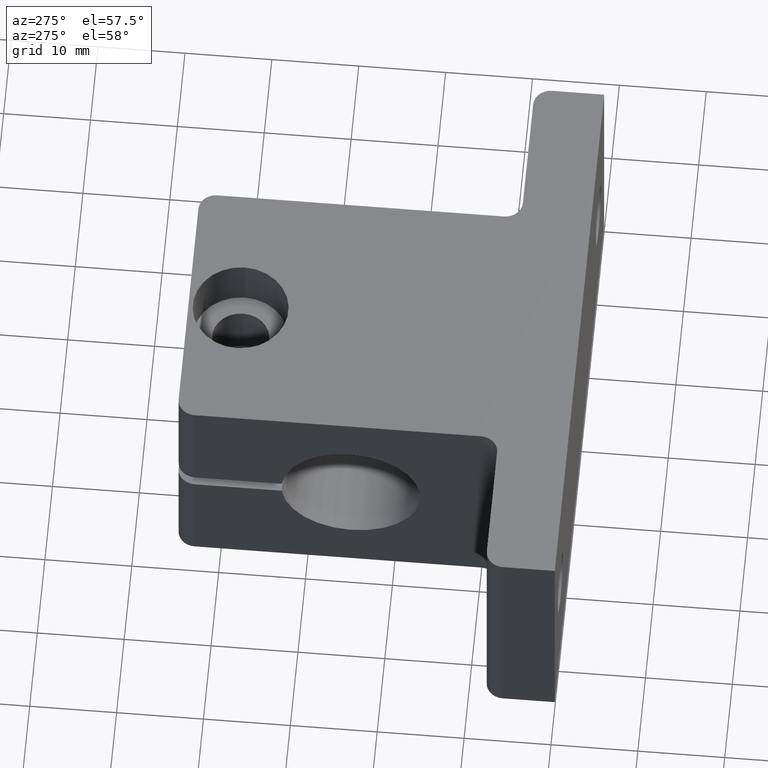
[diagram: clean part render]
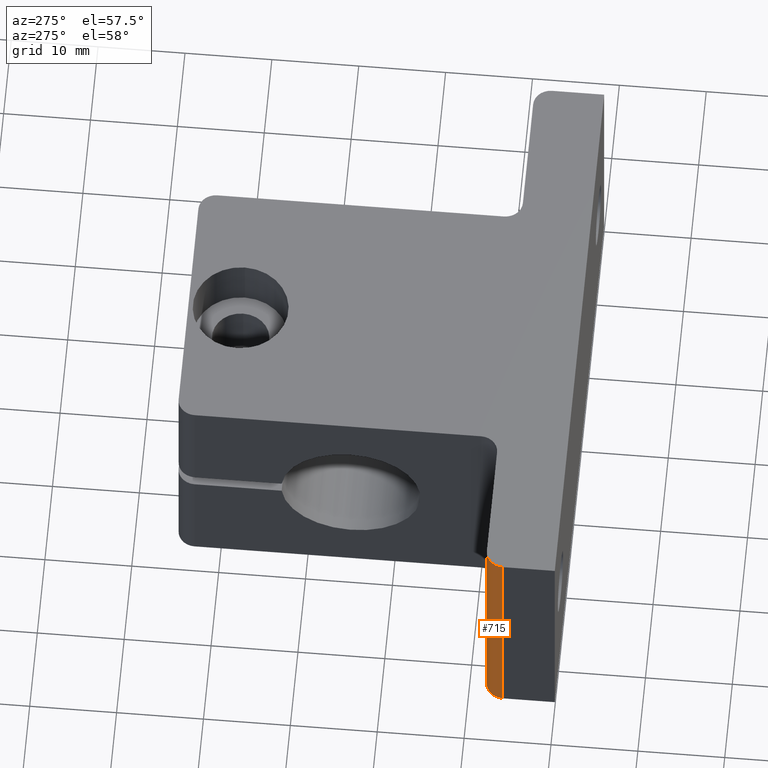
[diagram: same view with one face highlighted and labeled with its STEP entity id]
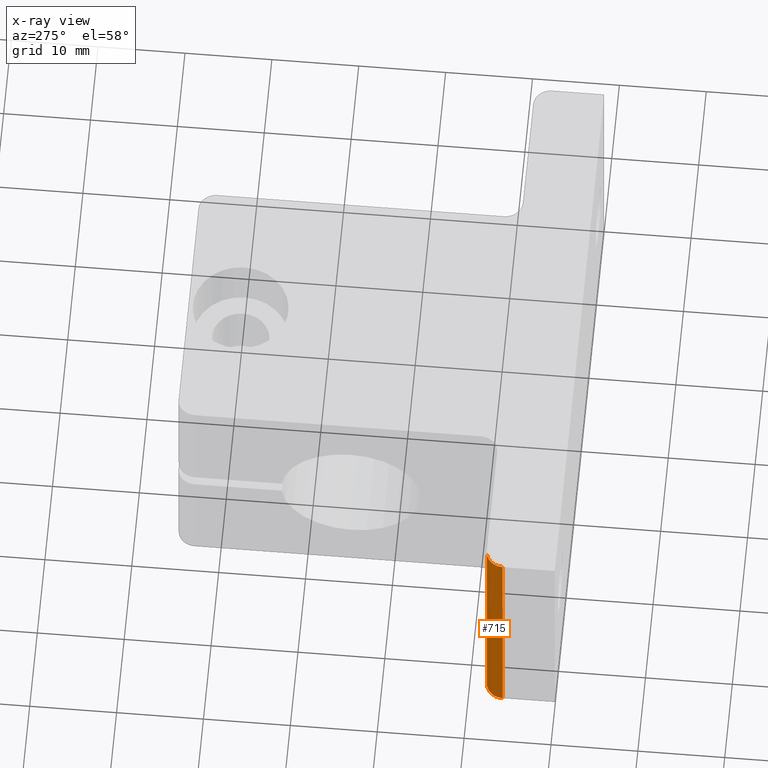
[diagram: x-ray of the same camera — body ghosted, the highlighted face saturated]
A machine part, auxiliary view. The second image highlights one B-rep face of the part: STEP entity #715.
The next image is the same camera in x-ray: the body ghosted, the highlighted face saturated — about 0% of this face is hidden behind the body in this view.
In plain terms, the highlighted cylindrical surface (edge-blend (fillet) strip) has radius 2 mm, axis along (0, 0, -1).
Its self-contained STEP definition (entity closure, byte-faithful):
#5 = CARTESIAN_POINT ( 'NONE',  ( -63.00000000000000000, 5.999999999999992900, 0.0000000000000000000 ) ) ;
#42 = DIRECTION ( 'NONE',  ( 1.000000000000000000, 0.0000000000000000000, 0.0000000000000000000 ) ) ;
#78 = DIRECTION ( 'NONE',  ( -0.0000000000000000000, 0.0000000000000000000, -1.000000000000000000 ) ) ;
#79 = VERTEX_POINT ( 'NONE', #188 ) ;
#101 = CARTESIAN_POINT ( 'NONE',  ( -63.00000000000000000, 7.999999999999992900, -28.00000000000000000 ) ) ;
#132 = CARTESIAN_POINT ( 'NONE',  ( -63.00000000000000000, 5.999999999999992900, -28.00000000000000000 ) ) ;
#141 = VERTEX_POINT ( 'NONE', #173 ) ;
#148 = DIRECTION ( 'NONE',  ( 0.0000000000000000000, -0.0000000000000000000, 1.000000000000000000 ) ) ;
#157 = DIRECTION ( 'NONE',  ( 1.000000000000000000, 0.0000000000000000000, 0.0000000000000000000 ) ) ;
#162 = VERTEX_POINT ( 'NONE', #424 ) ;
#173 = CARTESIAN_POINT ( 'NONE',  ( -63.00000000000000000, 7.999999999999992900, 0.0000000000000000000 ) ) ;
#188 = CARTESIAN_POINT ( 'NONE',  ( -65.00000000000000000, 5.999999999999991100, -28.00000000000000000 ) ) ;
#209 = DIRECTION ( 'NONE',  ( -0.0000000000000000000, -0.0000000000000000000, -1.000000000000000000 ) ) ;
#222 = CARTESIAN_POINT ( 'NONE',  ( -63.00000000000000000, 5.999999999999992900, -28.00000000000000000 ) ) ;
#237 = CARTESIAN_POINT ( 'NONE',  ( -65.00000000000000000, 5.999999999999992900, -28.00000000000000000 ) ) ;
#270 = DIRECTION ( 'NONE',  ( -1.000000000000000000, 0.0000000000000000000, 0.0000000000000000000 ) ) ;
#300 = DIRECTION ( 'NONE',  ( 0.0000000000000000000, 0.0000000000000000000, 1.000000000000000000 ) ) ;
#334 = CARTESIAN_POINT ( 'NONE',  ( -63.00000000000000000, 7.999999999999992900, 0.0000000000000000000 ) ) ;
#368 = DIRECTION ( 'NONE',  ( 0.0000000000000000000, 0.0000000000000000000, -1.000000000000000000 ) ) ;
#374 = VERTEX_POINT ( 'NONE', #101 ) ;
#424 = CARTESIAN_POINT ( 'NONE',  ( -65.00000000000000000, 5.999999999999991100, 0.0000000000000000000 ) ) ;
#504 = VECTOR ( 'NONE', #209, 1000.000000000000000 ) ;
#509 = LINE ( 'NONE', #237, #504 ) ;
#553 = AXIS2_PLACEMENT_3D ( 'NONE', #222, #368, #270 ) ;
#586 = AXIS2_PLACEMENT_3D ( 'NONE', #5, #148, #42 ) ;
#587 = AXIS2_PLACEMENT_3D ( 'NONE', #132, #78, #157 ) ;
#660 = ORIENTED_EDGE ( 'NONE', *, *, #1118, .F. ) ;
#665 = ORIENTED_EDGE ( 'NONE', *, *, #1071, .F. ) ;
#676 = ORIENTED_EDGE ( 'NONE', *, *, #1069, .F. ) ;
#690 = ORIENTED_EDGE ( 'NONE', *, *, #1079, .F. ) ;
#715 = ADVANCED_FACE ( 'NONE', ( #880 ), #889, .T. ) ;
#854 = CIRCLE ( 'NONE', #587, 2.000000000000001800 ) ;
#857 = VECTOR ( 'NONE', #300, 1000.000000000000000 ) ;
#861 = LINE ( 'NONE', #334, #857 ) ;
#880 = FACE_OUTER_BOUND ( 'NONE', #975, .T. ) ;
#889 = CYLINDRICAL_SURFACE ( 'NONE', #553, 2.000000000000001800 ) ;
#953 = CIRCLE ( 'NONE', #586, 2.000000000000001800 ) ;
#975 = EDGE_LOOP ( 'NONE', ( #665, #660, #676, #690 ) ) ;
#1069 = EDGE_CURVE ( 'NONE', #141, #162, #953, .T. ) ;
#1071 = EDGE_CURVE ( 'NONE', #79, #374, #854, .T. ) ;
#1079 = EDGE_CURVE ( 'NONE', #374, #141, #861, .T. ) ;
#1118 = EDGE_CURVE ( 'NONE', #162, #79, #509, .T. ) ;